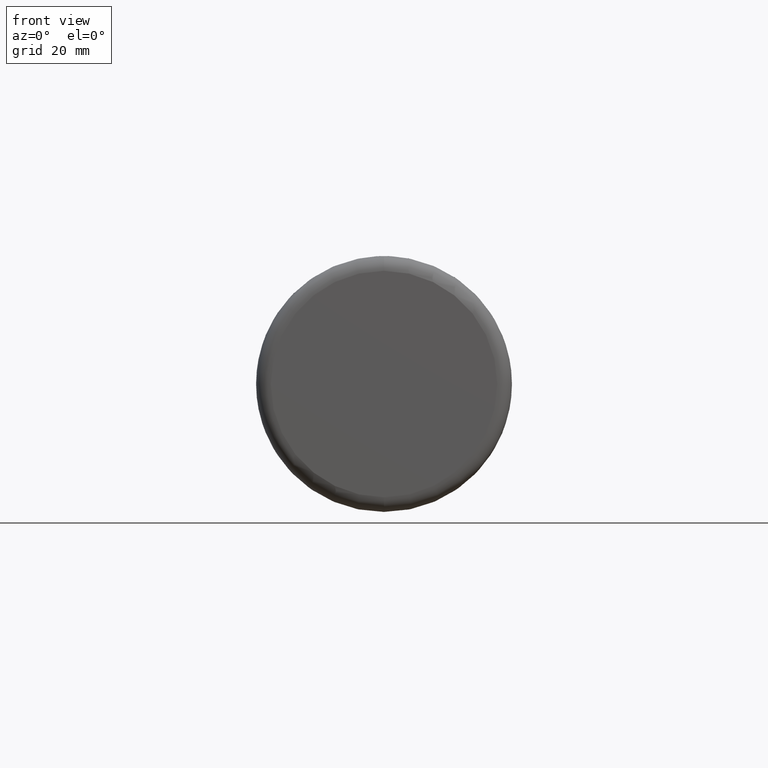
[diagram: clean part render]
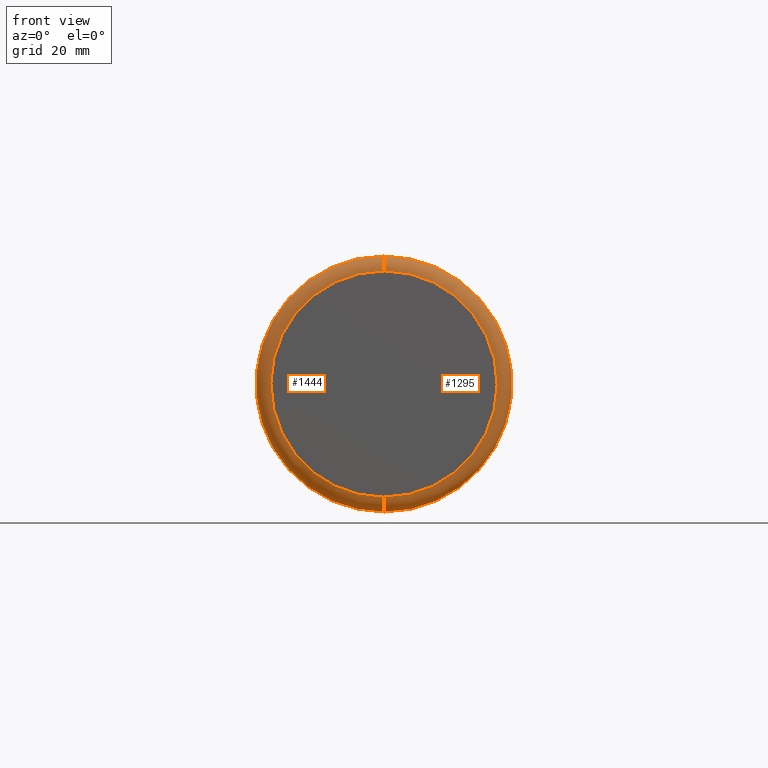
[diagram: same view with one multi-face feature highlighted, each face labeled with its STEP entity id]
A machine part, front view. The highlighted faces form ONE feature: a constant-radius fillet chain: 2 tangent blend faces with common blend radius 2.6496 mm. The faces share edges in the B-rep.
Their STEP definitions:
[1] entity #1444 (Torus):
#50 = EDGE_CURVE ( 'NONE', #3996, #347, #3865, .T. ) ;
#347 = VERTEX_POINT ( 'NONE', #4670 ) ;
#502 = EDGE_LOOP ( 'NONE', ( #4327, #2953, #2857, #1678 ) ) ;
#636 = VERTEX_POINT ( 'NONE', #2958 ) ;
#660 = FACE_OUTER_BOUND ( 'NONE', #502, .T. ) ;
#740 = CARTESIAN_POINT ( 'NONE',  ( 0.0000000000000000000, 2.649600000000002200, 20.35040000000000000 ) ) ;
#840 = CIRCLE ( 'NONE', #1506, 2.649599999999998600 ) ;
#855 = AXIS2_PLACEMENT_3D ( 'NONE', #2692, #2673, #4495 ) ;
#1093 = DIRECTION ( 'NONE',  ( 0.0000000000000000000, 0.0000000000000000000, 1.000000000000000000 ) ) ;
#1444 = ADVANCED_FACE ( 'NONE', ( #660 ), #4067, .T. ) ;
#1446 = CARTESIAN_POINT ( 'NONE',  ( 0.0000000000000000000, 2.649600000000002200, 0.0000000000000000000 ) ) ;
#1506 = AXIS2_PLACEMENT_3D ( 'NONE', #3852, #4223, #4579 ) ;
#1579 = VERTEX_POINT ( 'NONE', #2390 ) ;
#1678 = ORIENTED_EDGE ( 'NONE', *, *, #1804, .F. ) ;
#1804 = EDGE_CURVE ( 'NONE', #1579, #347, #2230, .T. ) ;
#1890 = EDGE_CURVE ( 'NONE', #3996, #636, #2849, .T. ) ;
#2230 = CIRCLE ( 'NONE', #4270, 23.00000000000000000 ) ;
#2390 = CARTESIAN_POINT ( 'NONE',  ( 2.816687638038913100E-015, 2.649600000000002200, -23.00000000000000000 ) ) ;
#2539 = DIRECTION ( 'NONE',  ( 0.0000000000000000000, 0.0000000000000000000, 1.000000000000000000 ) ) ;
#2613 = CARTESIAN_POINT ( 'NONE',  ( 0.0000000000000000000, 0.0000000000000000000, 0.0000000000000000000 ) ) ;
#2673 = DIRECTION ( 'NONE',  ( 0.0000000000000000000, 1.000000000000000000, 0.0000000000000000000 ) ) ;
#2692 = CARTESIAN_POINT ( 'NONE',  ( 0.0000000000000000000, 2.649600000000002200, 0.0000000000000000000 ) ) ;
#2730 = AXIS2_PLACEMENT_3D ( 'NONE', #740, #3289, #1093 ) ;
#2849 = CIRCLE ( 'NONE', #4004, 20.35040000000000000 ) ;
#2857 = ORIENTED_EDGE ( 'NONE', *, *, #50, .T. ) ;
#2953 = ORIENTED_EDGE ( 'NONE', *, *, #1890, .F. ) ;
#2958 = CARTESIAN_POINT ( 'NONE',  ( 2.654446430087871000E-015, 0.0000000000000000000, -20.35040000000000000 ) ) ;
#3289 = DIRECTION ( 'NONE',  ( -1.000000000000000000, 0.0000000000000000000, 0.0000000000000000000 ) ) ;
#3361 = DIRECTION ( 'NONE',  ( -0.0000000000000000000, -1.000000000000000000, -0.0000000000000000000 ) ) ;
#3715 = DIRECTION ( 'NONE',  ( 0.0000000000000000000, 0.0000000000000000000, 1.000000000000000000 ) ) ;
#3852 = CARTESIAN_POINT ( 'NONE',  ( 2.492205222136829700E-015, 2.649600000000002200, -20.35040000000000000 ) ) ;
#3865 = CIRCLE ( 'NONE', #2730, 2.649599999999998600 ) ;
#3996 = VERTEX_POINT ( 'NONE', #4053 ) ;
#4004 = AXIS2_PLACEMENT_3D ( 'NONE', #2613, #3361, #3715 ) ;
#4053 = CARTESIAN_POINT ( 'NONE',  ( 0.0000000000000000000, 0.0000000000000000000, 20.35040000000000000 ) ) ;
#4067 = TOROIDAL_SURFACE ( 'NONE', #855, 20.35040000000000000, 2.649600000000000000 ) ;
#4223 = DIRECTION ( 'NONE',  ( 1.000000000000000000, -0.0000000000000000000, 1.224646799147353200E-016 ) ) ;
#4270 = AXIS2_PLACEMENT_3D ( 'NONE', #1446, #4382, #2539 ) ;
#4327 = ORIENTED_EDGE ( 'NONE', *, *, #4380, .F. ) ;
#4380 = EDGE_CURVE ( 'NONE', #636, #1579, #840, .T. ) ;
#4382 = DIRECTION ( 'NONE',  ( 0.0000000000000000000, 1.000000000000000000, 0.0000000000000000000 ) ) ;
#4495 = DIRECTION ( 'NONE',  ( 0.0000000000000000000, 0.0000000000000000000, 1.000000000000000000 ) ) ;
#4579 = DIRECTION ( 'NONE',  ( 1.224646799147354200E-016, 0.0000000000000000000, -1.000000000000000000 ) ) ;
#4670 = CARTESIAN_POINT ( 'NONE',  ( 0.0000000000000000000, 2.649600000000002200, 23.00000000000000000 ) ) ;
[2] entity #1295 (Torus):
#4 = AXIS2_PLACEMENT_3D ( 'NONE', #281, #4191, #3855 ) ;
#50 = EDGE_CURVE ( 'NONE', #3996, #347, #3865, .T. ) ;
#130 = ORIENTED_EDGE ( 'NONE', *, *, #50, .F. ) ;
#281 = CARTESIAN_POINT ( 'NONE',  ( 0.0000000000000000000, 0.0000000000000000000, 0.0000000000000000000 ) ) ;
#332 = FACE_OUTER_BOUND ( 'NONE', #2274, .T. ) ;
#347 = VERTEX_POINT ( 'NONE', #4670 ) ;
#636 = VERTEX_POINT ( 'NONE', #2958 ) ;
#740 = CARTESIAN_POINT ( 'NONE',  ( 0.0000000000000000000, 2.649600000000002200, 20.35040000000000000 ) ) ;
#840 = CIRCLE ( 'NONE', #1506, 2.649599999999998600 ) ;
#1093 = DIRECTION ( 'NONE',  ( 0.0000000000000000000, 0.0000000000000000000, 1.000000000000000000 ) ) ;
#1244 = CIRCLE ( 'NONE', #4, 20.35040000000000000 ) ;
#1295 = ADVANCED_FACE ( 'NONE', ( #332 ), #4233, .T. ) ;
#1506 = AXIS2_PLACEMENT_3D ( 'NONE', #3852, #4223, #4579 ) ;
#1579 = VERTEX_POINT ( 'NONE', #2390 ) ;
#1717 = ORIENTED_EDGE ( 'NONE', *, *, #3039, .F. ) ;
#1760 = DIRECTION ( 'NONE',  ( 0.0000000000000000000, 0.0000000000000000000, 1.000000000000000000 ) ) ;
#1797 = ORIENTED_EDGE ( 'NONE', *, *, #4066, .F. ) ;
#1916 = CIRCLE ( 'NONE', #3026, 23.00000000000000000 ) ;
#2138 = DIRECTION ( 'NONE',  ( 0.0000000000000000000, 1.000000000000000000, 0.0000000000000000000 ) ) ;
#2274 = EDGE_LOOP ( 'NONE', ( #1797, #4212, #1717, #130 ) ) ;
#2390 = CARTESIAN_POINT ( 'NONE',  ( 2.816687638038913100E-015, 2.649600000000002200, -23.00000000000000000 ) ) ;
#2730 = AXIS2_PLACEMENT_3D ( 'NONE', #740, #3289, #1093 ) ;
#2958 = CARTESIAN_POINT ( 'NONE',  ( 2.654446430087871000E-015, 0.0000000000000000000, -20.35040000000000000 ) ) ;
#3026 = AXIS2_PLACEMENT_3D ( 'NONE', #3933, #2138, #1760 ) ;
#3039 = EDGE_CURVE ( 'NONE', #347, #1579, #1916, .T. ) ;
#3289 = DIRECTION ( 'NONE',  ( -1.000000000000000000, 0.0000000000000000000, 0.0000000000000000000 ) ) ;
#3330 = DIRECTION ( 'NONE',  ( 0.0000000000000000000, 0.0000000000000000000, 1.000000000000000000 ) ) ;
#3711 = DIRECTION ( 'NONE',  ( 0.0000000000000000000, 1.000000000000000000, 0.0000000000000000000 ) ) ;
#3852 = CARTESIAN_POINT ( 'NONE',  ( 2.492205222136829700E-015, 2.649600000000002200, -20.35040000000000000 ) ) ;
#3855 = DIRECTION ( 'NONE',  ( 0.0000000000000000000, 0.0000000000000000000, 1.000000000000000000 ) ) ;
#3865 = CIRCLE ( 'NONE', #2730, 2.649599999999998600 ) ;
#3933 = CARTESIAN_POINT ( 'NONE',  ( 0.0000000000000000000, 2.649600000000002200, 0.0000000000000000000 ) ) ;
#3996 = VERTEX_POINT ( 'NONE', #4053 ) ;
#4053 = CARTESIAN_POINT ( 'NONE',  ( 0.0000000000000000000, 0.0000000000000000000, 20.35040000000000000 ) ) ;
#4066 = EDGE_CURVE ( 'NONE', #636, #3996, #1244, .T. ) ;
#4080 = CARTESIAN_POINT ( 'NONE',  ( 0.0000000000000000000, 2.649600000000002200, 0.0000000000000000000 ) ) ;
#4117 = AXIS2_PLACEMENT_3D ( 'NONE', #4080, #3711, #3330 ) ;
#4191 = DIRECTION ( 'NONE',  ( -0.0000000000000000000, -1.000000000000000000, -0.0000000000000000000 ) ) ;
#4212 = ORIENTED_EDGE ( 'NONE', *, *, #4380, .T. ) ;
#4223 = DIRECTION ( 'NONE',  ( 1.000000000000000000, -0.0000000000000000000, 1.224646799147353200E-016 ) ) ;
#4233 = TOROIDAL_SURFACE ( 'NONE', #4117, 20.35040000000000000, 2.649600000000000000 ) ;
#4380 = EDGE_CURVE ( 'NONE', #636, #1579, #840, .T. ) ;
#4579 = DIRECTION ( 'NONE',  ( 1.224646799147354200E-016, 0.0000000000000000000, -1.000000000000000000 ) ) ;
#4670 = CARTESIAN_POINT ( 'NONE',  ( 0.0000000000000000000, 2.649600000000002200, 23.00000000000000000 ) ) ;